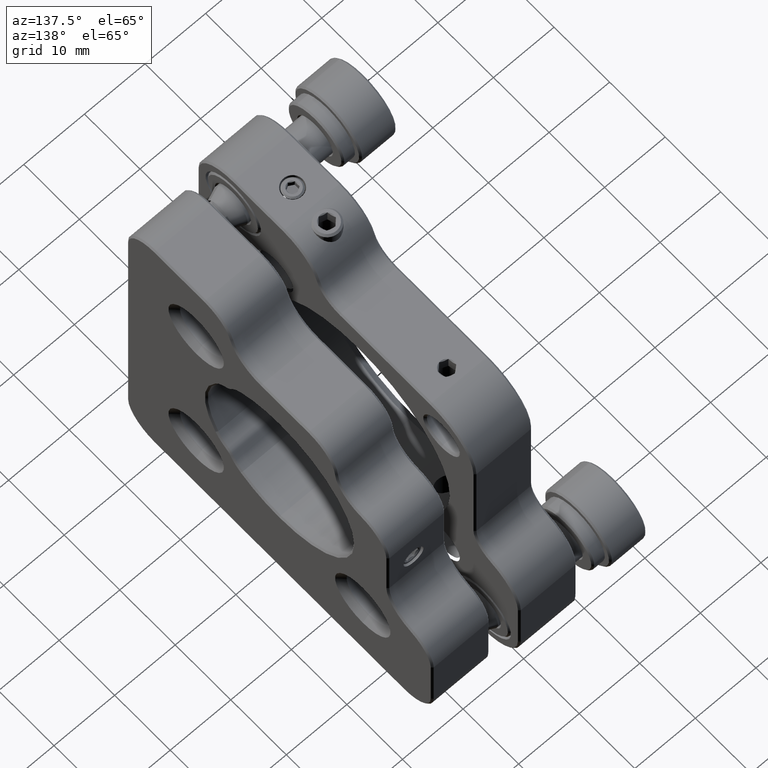
[diagram: clean part render]
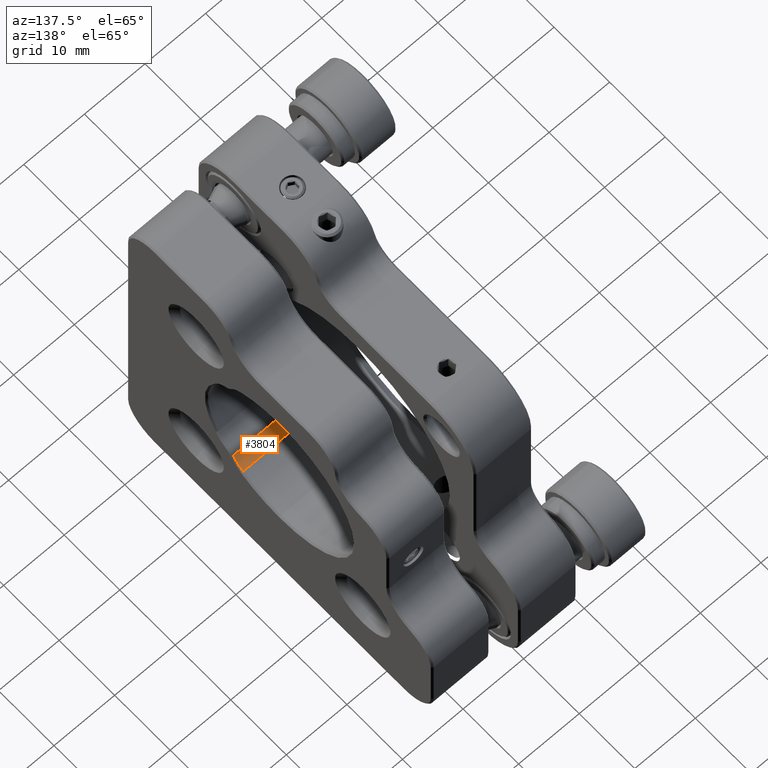
[diagram: same view with one face highlighted and labeled with its STEP entity id]
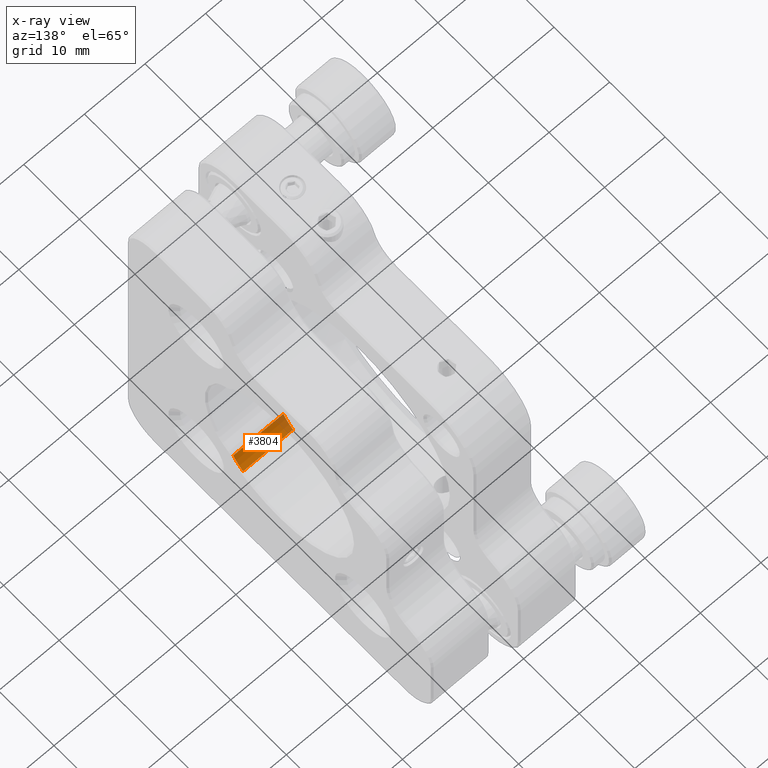
[diagram: x-ray of the same camera — body ghosted, the highlighted face saturated]
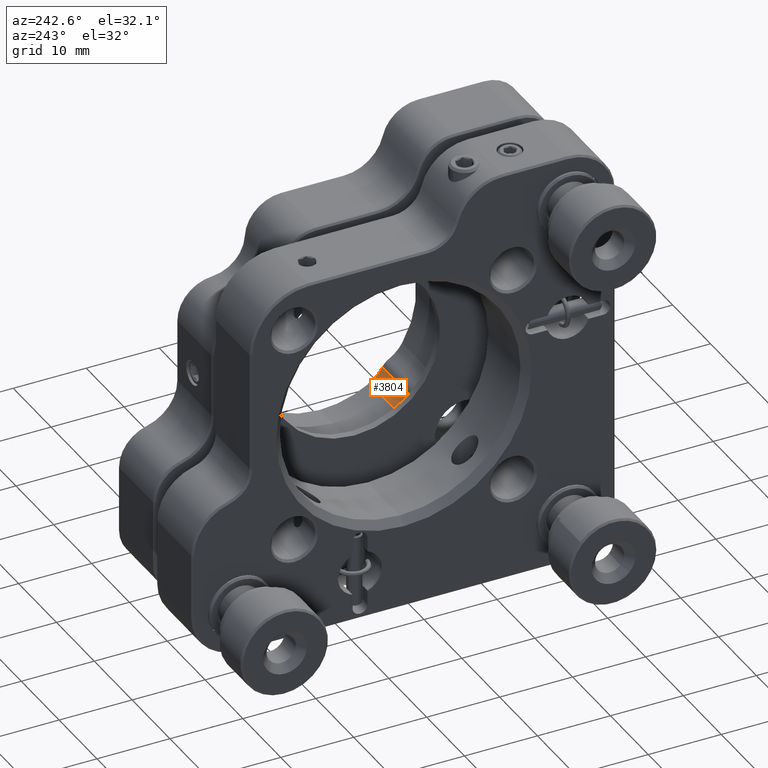
[diagram: same view with one face highlighted and labeled with its STEP entity id]
A machine part, auxiliary view. The second image highlights one B-rep face of the part: STEP entity #3804.
The next image is the same camera in x-ray: the body ghosted, the highlighted face saturated — about 12% of this face is hidden behind the body in this view.
A second angle (auxiliary view) of the same face is appended — the face is thin or edge-on in the first view.
In plain terms, the highlighted cylindrical surface (partial cylindrical patch) has radius 5 mm, axis along (1, -0, -0).
Its self-contained STEP definition (entity closure, byte-faithful):
#970 = DIRECTION ( 'NONE',  ( 1.000000000000000000, -0.000000000000000000, -0.000000000000000000 ) ) ;
#1121 = FACE_OUTER_BOUND ( 'NONE', #30159, .T. ) ;
#3503 = EDGE_CURVE ( 'NONE', #5146, #5068, #5586, .T. ) ;
#3804 = ADVANCED_FACE ( 'NONE', ( #1121 ), #26585, .F. ) ;
#4909 = DIRECTION ( 'NONE',  ( 1.000000000000000000, -0.000000000000000000, -0.000000000000000000 ) ) ;
#5068 = VERTEX_POINT ( 'NONE', #12511 ) ;
#5146 = VERTEX_POINT ( 'NONE', #15838 ) ;
#5586 = CIRCLE ( 'NONE', #20477, 4.999999999999997335 ) ;
#7011 = ORIENTED_EDGE ( 'NONE', *, *, #33946, .F. ) ;
#8200 = EDGE_CURVE ( 'NONE', #5146, #8244, #17738, .T. ) ;
#8244 = VERTEX_POINT ( 'NONE', #17634 ) ;
#9610 = VERTEX_POINT ( 'NONE', #28061 ) ;
#11167 = DIRECTION ( 'NONE',  ( 0.000000000000000000, 0.000000000000000000, -1.000000000000000000 ) ) ;
#12511 = CARTESIAN_POINT ( 'NONE',  ( 4.169089919527194432, -15.05958450334285104, 43.70295754270932065 ) ) ;
#12758 = DIRECTION ( 'NONE',  ( 0.000000000000000000, 0.000000000000000000, -1.000000000000000000 ) ) ;
#12779 = DIRECTION ( 'NONE',  ( 1.000000000000000000, 0.000000000000000000, 0.000000000000000000 ) ) ;
#15766 = ORIENTED_EDGE ( 'NONE', *, *, #28364, .F. ) ;
#15838 = CARTESIAN_POINT ( 'NONE',  ( 4.169089919527194432, -16.81108795331307704, 45.49536471453733810 ) ) ;
#17600 = ORIENTED_EDGE ( 'NONE', *, *, #3503, .T. ) ;
#17634 = CARTESIAN_POINT ( 'NONE',  ( -4.080910080472722079, -16.81108795331307704, 45.49536471453733810 ) ) ;
#17738 = LINE ( 'NONE', #26941, #23437 ) ;
#17918 = AXIS2_PLACEMENT_3D ( 'NONE', #19239, #4909, #11167 ) ;
#18740 = DIRECTION ( 'NONE',  ( 1.000000000000000000, -0.000000000000000000, -0.000000000000000000 ) ) ;
#18822 = CIRCLE ( 'NONE', #32762, 4.999999999999997335 ) ;
#19239 = CARTESIAN_POINT ( 'NONE',  ( -42.41614812712244031, -12.47335268834916988, 47.98214029168306638 ) ) ;
#20444 = CARTESIAN_POINT ( 'NONE',  ( -42.41614812712244031, -15.05958450334285104, 43.70295754270932065 ) ) ;
#20477 = AXIS2_PLACEMENT_3D ( 'NONE', #29719, #18740, #12758 ) ;
#20985 = DIRECTION ( 'NONE',  ( 0.000000000000000000, 0.000000000000000000, -1.000000000000000000 ) ) ;
#23437 = VECTOR ( 'NONE', #35237, 1000.000000000000000 ) ;
#23935 = CARTESIAN_POINT ( 'NONE',  ( -4.080910080472722079, -12.47335268834916988, 47.98214029168306638 ) ) ;
#26585 = CYLINDRICAL_SURFACE ( 'NONE', #17918, 4.999999999999997335 ) ;
#26941 = CARTESIAN_POINT ( 'NONE',  ( -42.41614812712244031, -16.81108795331307704, 45.49536471453733810 ) ) ;
#28061 = CARTESIAN_POINT ( 'NONE',  ( -4.080910080472722079, -15.05958450334285104, 43.70295754270932065 ) ) ;
#28364 = EDGE_CURVE ( 'NONE', #8244, #9610, #18822, .T. ) ;
#29173 = LINE ( 'NONE', #20444, #34941 ) ;
#29719 = CARTESIAN_POINT ( 'NONE',  ( 4.169089919527208643, -12.47335268834916988, 47.98214029168306638 ) ) ;
#30159 = EDGE_LOOP ( 'NONE', ( #36202, #17600, #7011, #15766 ) ) ;
#32762 = AXIS2_PLACEMENT_3D ( 'NONE', #23935, #12779, #20985 ) ;
#33946 = EDGE_CURVE ( 'NONE', #9610, #5068, #29173, .T. ) ;
#34941 = VECTOR ( 'NONE', #970, 1000.000000000000000 ) ;
#35237 = DIRECTION ( 'NONE',  ( -1.000000000000000000, 0.000000000000000000, 0.000000000000000000 ) ) ;
#36202 = ORIENTED_EDGE ( 'NONE', *, *, #8200, .F. ) ;